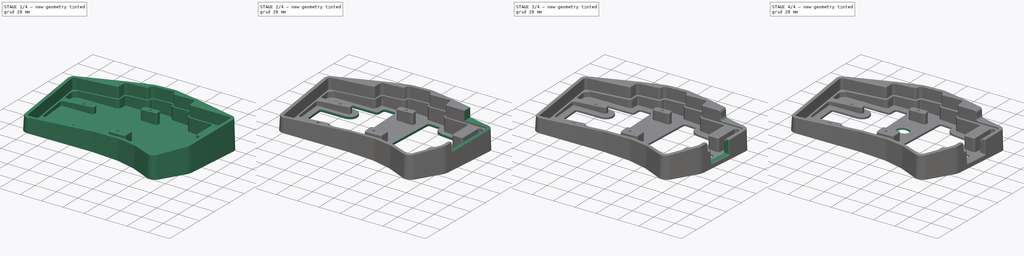
[diagram: build sequence overview — one tinted view per stage of 4, left to right]
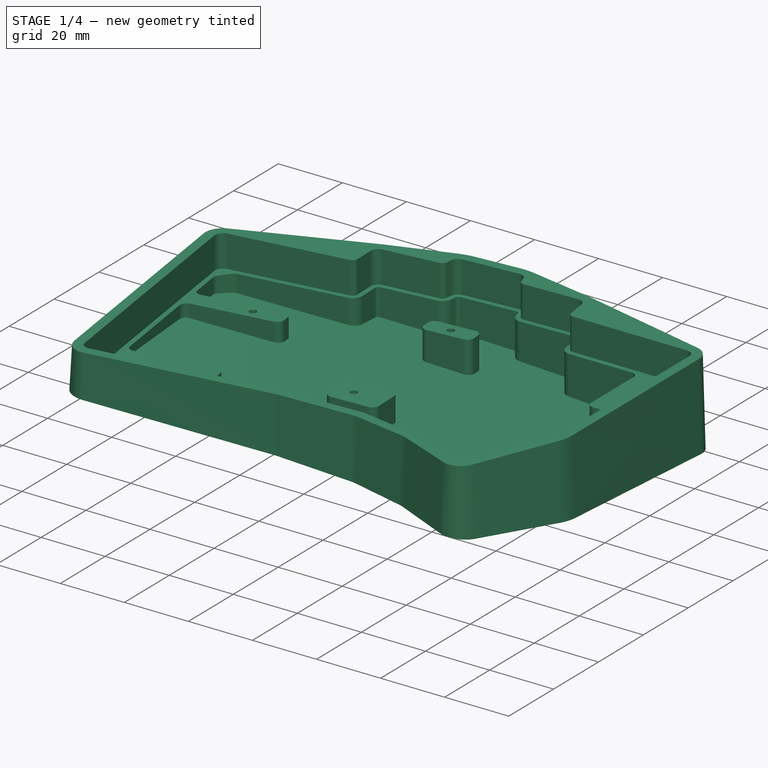
[diagram: stage 1 of 4 — iso view after this stage's code; geometry added in this stage tinted green]
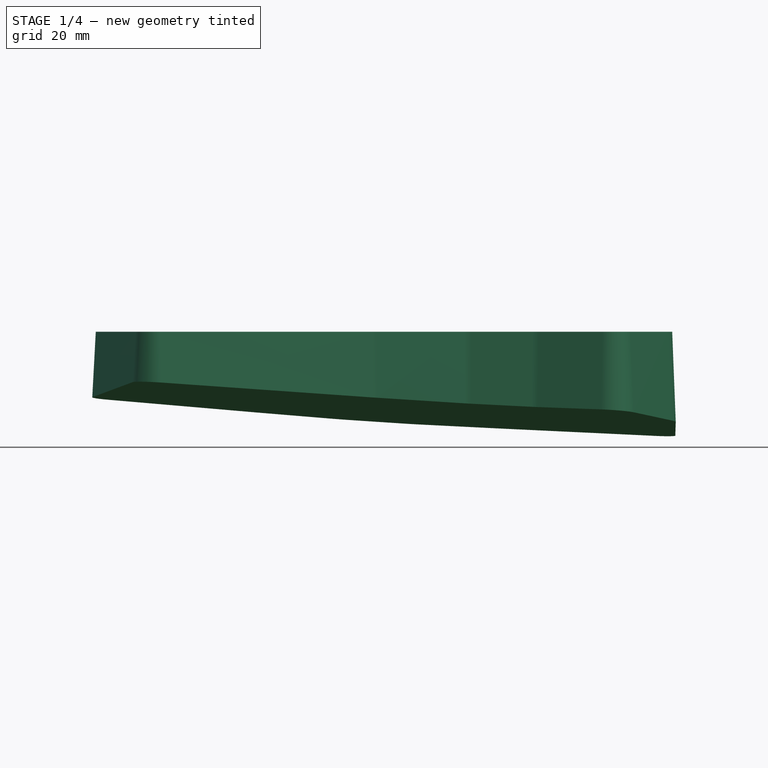
[diagram: stage 1 of 4 — front view after this stage's code; geometry added in this stage tinted green]
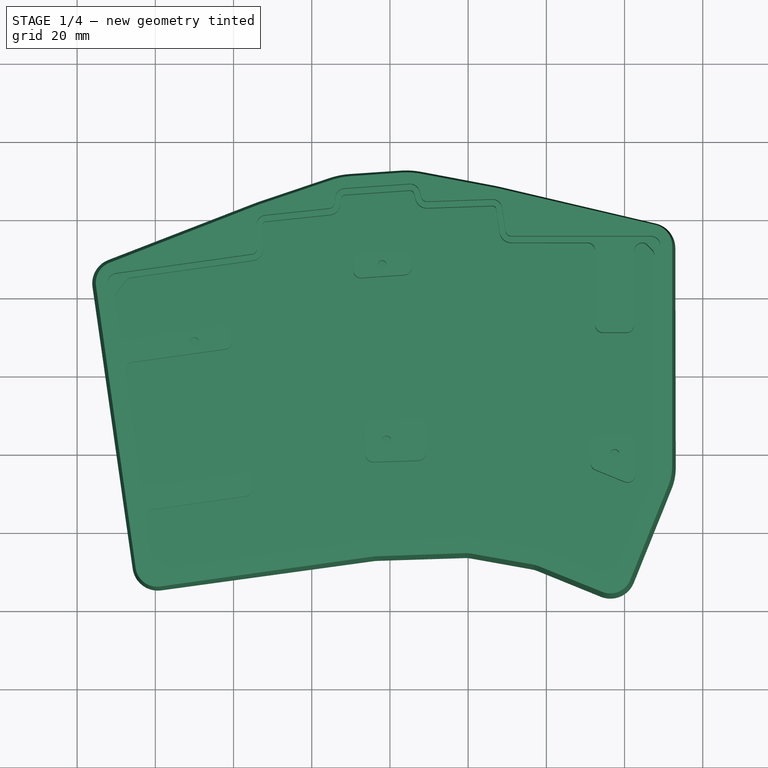
[diagram: stage 1 of 4 — top view after this stage's code; geometry added in this stage tinted green]
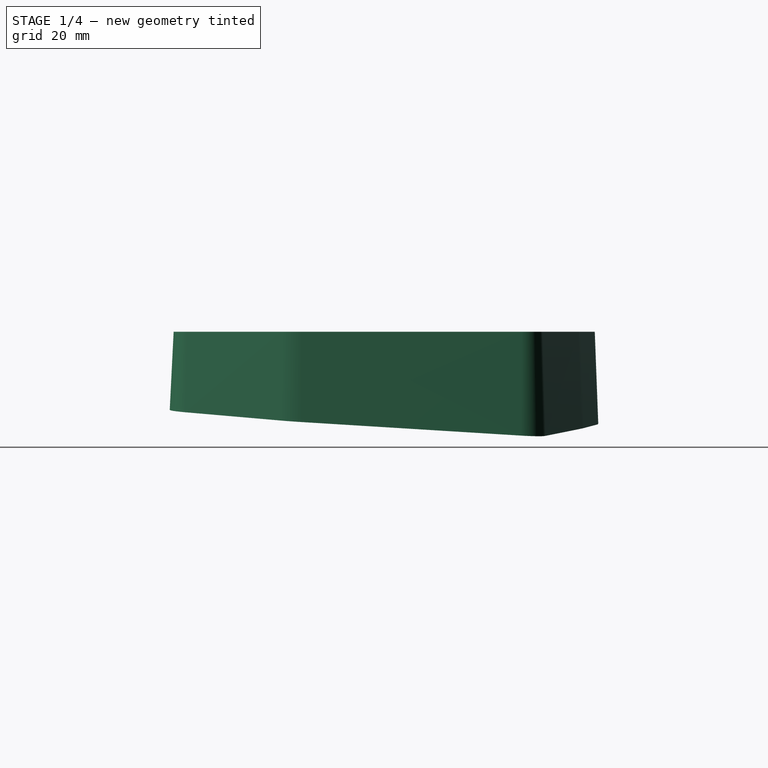
[diagram: stage 1 of 4 — right view after this stage's code; geometry added in this stage tinted green]
FCSTD DOCUMENT  (FreeCAD 0.20R)
Label: case
License: All rights reserved
LicenseURL: http://en.wikipedia.org/wiki/All_rights_reserved
objects: Sketcher::SketchObject×9, PartDesign::Pocket×6, PartDesign::Fillet×3, PartDesign::AdditiveLoft×1, PartDesign::Hole×1, PartDesign::Chamfer×1, PartDesign::Body×1
note: 34 computed .brp shape members not serialized (recipe doc carries the construction recipe); baked Part::Feature solids carry a one-line shape summary decoded from their .brp

FEATURE [Sketcher::SketchObject] Sketch
  AttachmentOffset = pos=(0,0,0) rot=(-0.707107,0.707107,0;0.087266rad)
  FullyConstrained = false
  MapMode = 5
  Placement = pos=(0,0,0) rot=(-0.707107,0.707107,0;0.087266rad)
  Support = -> [XY_Plane]
  sketch-geometry (24):
    g0: LineSegment StartX=28.6256 StartY=48.6172 StartZ=0 EndX=68.1608 EndY=39.4223 EndZ=0
    g1: ArcOfCircle CenterX=66.6883 CenterY=33.0913 CenterZ=0 NormalX=0 NormalY=0 NormalZ=1 AngleXU=0 Radius=6.5 StartAngle=0 EndAngle=1.34228
    g2: ArcOfCircle CenterX=58.6887 CenterY=-23.2259 CenterZ=0 NormalX=0 NormalY=0 NormalZ=1 AngleXU=0 Radius=14.5 StartAngle=5.89921 EndAngle=6.27415
    g3: LineSegment StartX=72.1329 StartY=-28.6577 StartZ=0 EndX=62.3826 EndY=-52.7905 EndZ=0
    g4: ArcOfCircle CenterX=56.3559 CenterY=-50.3555 CenterZ=0 NormalX=0 NormalY=0 NormalZ=1 AngleXU=0 Radius=6.5 StartAngle=4.32842 EndAngle=5.89921
    g5: ArcOfCircle CenterX=-59.5794 CenterY=-48.6384 CenterZ=0 NormalX=0 NormalY=0 NormalZ=1 AngleXU=0 Radius=6.5 StartAngle=3.28122 EndAngle=4.85202
    g6: LineSegment StartX=-66.0162 StartY=-49.543 StartZ=0 EndX=-76.1688 EndY=22.697 EndZ=0
    g7: ArcOfCircle CenterX=-69.7321 CenterY=23.6017 CenterZ=0 NormalX=0 NormalY=0 NormalZ=1 AngleXU=0 Radius=6.5 StartAngle=1.94285 EndAngle=3.28122
    g8: LineSegment StartX=-72.095 StartY=29.657 StartZ=0 EndX=-34.951 EndY=44.1515 EndZ=0
    g9: LineSegment StartX=-32.7629 StartY=44.9483 StartZ=0 EndX=-15.3566 EndY=50.8402 EndZ=0
    g10: ArcOfCircle CenterX=-16.4111 CenterY=-3.35926 CenterZ=0 NormalX=0 NormalY=0 NormalZ=1 AngleXU=0 Radius=51 StartAngle=1.89718 EndAngle=1.94285
    g11: ArcOfCircle CenterX=-8.62352 CenterY=30.9488 CenterZ=0 NormalX=0 NormalY=0 NormalZ=1 AngleXU=0 Radius=21 StartAngle=1.64061 EndAngle=1.89718
    g12: LineSegment StartX=-10.0884 StartY=51.8977 StartZ=0 EndX=2.83617 EndY=52.8015 EndZ=0
    g13: ArcOfCircle CenterX=4.30106 CenterY=31.8526 CenterZ=0 NormalX=0 NormalY=0 NormalZ=1 AngleXU=0 Radius=21 StartAngle=1.38586 EndAngle=1.64061
    g14: LineSegment StartX=26.4508 StartY=49.0733 StartZ=0 EndX=8.16264 EndY=52.4945 EndZ=0
    g15: ArcOfCircle CenterX=17.0727 CenterY=-1.05707 CenterZ=0 NormalX=0 NormalY=0 NormalZ=1 AngleXU=0 Radius=51 StartAngle=1.34228 EndAngle=1.38586
    g16: LineSegment StartX=73.1881 StartY=-23.3569 StartZ=0 EndX=73.1883 EndY=33.0913 EndZ=0
    g17: LineSegment StartX=-4.22173 StartY=-47.4222 StartZ=0 EndX=-58.6748 EndY=-55.0751 EndZ=0
    g18: ArcOfCircle CenterX=-3.10834 CenterY=-55.3444 CenterZ=0 NormalX=0 NormalY=0 NormalZ=1 AngleXU=0 Radius=8 StartAngle=1.6057 EndAngle=1.71042
    g19: LineSegment StartX=53.921 StartY=-56.3822 StartZ=0 EndX=37.8078 EndY=-49.8721 EndZ=0
    g20: ArcOfCircle CenterX=34.811 CenterY=-57.2895 CenterZ=0 NormalX=0 NormalY=0 NormalZ=1 AngleXU=0 Radius=8 StartAngle=1.18682 EndAngle=1.39626
    g21: LineSegment StartX=20.724 StartY=-46.6822 StartZ=0 EndX=36.2001 EndY=-49.4111 EndZ=0
    g22: LineSegment StartX=-3.38754 StartY=-47.3493 StartZ=0 EndX=19.0556 EndY=-46.5655 EndZ=0
    g23: ArcOfCircle CenterX=19.3348 CenterY=-54.5607 CenterZ=0 NormalX=0 NormalY=0 NormalZ=1 AngleXU=0 Radius=8 StartAngle=1.39626 EndAngle=1.6057
  constraints (24):
    c: Coincident(g6,g7)
    c: Coincident(g7,g8)
    c: Coincident(g5,g6)
    c: Coincident(g5,g17)
    c: Coincident(g8,g10)
    c: Coincident(g9,g10)
    c: Coincident(g9,g11)
    c: Coincident(g11,g12)
    c: Coincident(g17,g18)
    c: Coincident(g18,g22)
    c: Coincident(g12,g13)
    c: Coincident(g13,g14)
    c: Coincident(g22,g23)
    c: Coincident(g21,g23)
    c: Coincident(g14,g15)
    c: Coincident(g0,g15)
    c: Coincident(g20,g21)
    c: Coincident(g19,g20)
    c: Coincident(g4,g19)
    c: Coincident(g3,g4)
    c: Coincident(g0,g1)
    c: Coincident(g2,g3)
    c: Coincident(g2,g16)
    c: Coincident(g1,g16)
FEATURE [Sketcher::SketchObject] Sketch001
  AttachmentOffset = pos=(0,0,20) rot=(0,0,1;0rad)
  FullyConstrained = false
  MapMode = 5
  Placement = pos=(0,0,20) rot=(0,0,1;0rad)
  Support = -> [XY_Plane]
  sketch-geometry (24):
    g0: LineSegment StartX=-65.0259 StartY=-49.4038 StartZ=0 EndX=-75.1786 EndY=22.8362 EndZ=0
    g1: ArcOfCircle CenterX=-59.5794 CenterY=-48.6384 CenterZ=0 NormalX=0 NormalY=0 NormalZ=1 AngleXU=0 Radius=5.5 StartAngle=3.28122 EndAngle=4.85202
    g2: ArcOfCircle CenterX=56.3559 CenterY=-50.3555 CenterZ=0 NormalX=0 NormalY=0 NormalZ=1 AngleXU=0 Radius=5.5 StartAngle=4.32842 EndAngle=5.89921
    g3: LineSegment StartX=71.2057 StartY=-28.2831 StartZ=0 EndX=61.4554 EndY=-52.4158 EndZ=0
    g4: ArcOfCircle CenterX=58.6887 CenterY=-23.2259 CenterZ=0 NormalX=0 NormalY=0 NormalZ=1 AngleXU=0 Radius=13.5 StartAngle=5.89921 EndAngle=6.27415
    g5: ArcOfCircle CenterX=-69.7321 CenterY=23.6017 CenterZ=0 NormalX=0 NormalY=0 NormalZ=1 AngleXU=0 Radius=5.5 StartAngle=1.94285 EndAngle=3.28122
    g6: ArcOfCircle CenterX=66.6883 CenterY=33.0913 CenterZ=0 NormalX=0 NormalY=0 NormalZ=1 AngleXU=0 Radius=5.5 StartAngle=0 EndAngle=1.34228
    g7: LineSegment StartX=28.3991 StartY=47.6432 StartZ=0 EndX=67.9342 EndY=38.4483 EndZ=0
    g8: ArcOfCircle CenterX=17.0727 CenterY=-1.05707 CenterZ=0 NormalX=0 NormalY=0 NormalZ=1 AngleXU=0 Radius=50 StartAngle=1.34228 EndAngle=1.38586
    g9: LineSegment StartX=26.2669 StartY=48.0903 StartZ=0 EndX=7.97876 EndY=51.5116 EndZ=0
    g10: ArcOfCircle CenterX=4.30106 CenterY=31.8526 CenterZ=0 NormalX=0 NormalY=0 NormalZ=1 AngleXU=0 Radius=20 StartAngle=1.38586 EndAngle=1.64061
    g11: LineSegment StartX=-10.0186 StartY=50.9001 StartZ=0 EndX=2.90593 EndY=51.8039 EndZ=0
    g12: ArcOfCircle CenterX=-8.62352 CenterY=30.9488 CenterZ=0 NormalX=0 NormalY=0 NormalZ=1 AngleXU=0 Radius=20 StartAngle=1.64061 EndAngle=1.89718
    g13: LineSegment StartX=-71.7315 StartY=28.7254 StartZ=0 EndX=-34.5875 EndY=43.2199 EndZ=0
    g14: LineSegment StartX=-32.4422 StartY=44.0011 StartZ=0 EndX=-15.036 EndY=49.893 EndZ=0
    g15: ArcOfCircle CenterX=-16.4111 CenterY=-3.35926 CenterZ=0 NormalX=0 NormalY=0 NormalZ=1 AngleXU=0 Radius=50 StartAngle=1.89718 EndAngle=1.94285
    g16: LineSegment StartX=72.1882 StartY=-23.3478 StartZ=0 EndX=72.1883 EndY=33.0913 EndZ=0
    g17: LineSegment StartX=54.2956 StartY=-55.455 StartZ=0 EndX=38.085 EndY=-48.9055 EndZ=0
    g18: ArcOfCircle CenterX=35.0881 CenterY=-56.323 CenterZ=0 NormalX=0 NormalY=0 NormalZ=1 AngleXU=0 Radius=8 StartAngle=1.18682 EndAngle=1.39626
    g19: LineSegment StartX=20.82 StartY=-45.6837 StartZ=0 EndX=36.4773 EndY=-48.4445 EndZ=0
    g20: ArcOfCircle CenterX=19.4309 CenterY=-53.5622 CenterZ=0 NormalX=0 NormalY=0 NormalZ=1 AngleXU=0 Radius=8 StartAngle=1.39626 EndAngle=1.6057
    g21: LineSegment StartX=-4.3609 StartY=-46.432 StartZ=0 EndX=-58.814 EndY=-54.0849 EndZ=0
    g22: LineSegment StartX=-3.52671 StartY=-46.359 StartZ=0 EndX=19.1517 EndY=-45.5671 EndZ=0
    g23: ArcOfCircle CenterX=-3.24752 CenterY=-54.3541 CenterZ=0 NormalX=0 NormalY=0 NormalZ=1 AngleXU=0 Radius=8 StartAngle=1.6057 EndAngle=1.71042
  constraints (24):
    c: Coincident(g0,g5)
    c: Coincident(g5,g13)
    c: Coincident(g0,g1)
    c: Coincident(g1,g21)
    c: Coincident(g13,g15)
    c: Coincident(g14,g15)
    c: Coincident(g12,g14)
    c: Coincident(g11,g12)
    c: Coincident(g21,g23)
    c: Coincident(g22,g23)
    c: Coincident(g10,g11)
    c: Coincident(g9,g10)
    c: Coincident(g20,g22)
    c: Coincident(g19,g20)
    c: Coincident(g8,g9)
    c: Coincident(g7,g8)
    c: Coincident(g18,g19)
    c: Coincident(g17,g18)
    c: Coincident(g2,g17)
    c: Coincident(g2,g3)
    c: Coincident(g6,g7)
    c: Coincident(g3,g4)
    c: Coincident(g4,g16)
    c: Coincident(g6,g16)
FEATURE [PartDesign::AdditiveLoft] AdditiveLoft
  Closed = true
  Profile = -> Sketch001
  Ruled = true
  Sections = -> [Sketch]
FEATURE [Sketcher::SketchObject] Sketch002
  FullyConstrained = false
  MapMode = 5
  Placement = pos=(0,0,20) rot=(0,0,1;0rad)
  Support = -> [AdditiveLoft]
  sketch-geometry (32):
    g0: LineSegment StartX=-11.6753 StartY=47.777 StartZ=0 EndX=4.96767 EndY=48.9407 EndZ=0
    g1: ArcOfCircle CenterX=-11.5009 CenterY=45.283 CenterZ=0 NormalX=0 NormalY=0 NormalZ=1 AngleXU=0 Radius=2.5 StartAngle=1.64061 EndAngle=3.0267
    g2: LineSegment StartX=-14.166 StartY=43.9958 StartZ=0 EndX=-13.9844 EndY=45.5696 EndZ=0
    g3: ArcOfCircle CenterX=-15.6561 CenterY=44.1678 CenterZ=0 NormalX=0 NormalY=0 NormalZ=1 AngleXU=0 Radius=1.5 StartAngle=4.81711 EndAngle=6.16829
    g4: LineSegment StartX=-31.9027 StartY=40.9519 StartZ=0 EndX=-15.4993 EndY=42.676 EndZ=0
    g5: ArcOfCircle CenterX=-31.6414 CenterY=38.4656 CenterZ=0 NormalX=0 NormalY=0 NormalZ=1 AngleXU=0 Radius=2.5 StartAngle=1.67552 EndAngle=3.17029
    g6: LineSegment StartX=-33.9712 StartY=32.4992 StartZ=0 EndX=-34.1404 EndY=38.3939 EndZ=0
    g7: ArcOfCircle CenterX=-35.4706 CenterY=32.4561 CenterZ=0 NormalX=0 NormalY=0 NormalZ=1 AngleXU=0 Radius=1.5 StartAngle=4.85202 EndAngle=6.31188
    g8: LineSegment StartX=-70.08 StartY=26.0773 StartZ=0 EndX=-35.2618 EndY=30.9707 EndZ=0
    g9: ArcOfCircle CenterX=-69.7321 CenterY=23.6017 CenterZ=0 NormalX=0 NormalY=0 NormalZ=1 AngleXU=0 Radius=2.5 StartAngle=1.71042 EndAngle=3.28122
    g10: LineSegment StartX=-62.0551 StartY=-48.9863 StartZ=0 EndX=-72.2078 EndY=23.2537 EndZ=0
    g11: ArcOfCircle CenterX=-59.5794 CenterY=-48.6384 CenterZ=0 NormalX=0 NormalY=0 NormalZ=1 AngleXU=0 Radius=2.5 StartAngle=3.28122 EndAngle=4.85202
    g12: LineSegment StartX=-6.37833 StartY=-43.686 StartZ=0 EndX=-59.2315 EndY=-51.1141 EndZ=0
    g13: ArcOfCircle CenterX=-5.05618 CenterY=-53.0936 CenterZ=0 NormalX=0 NormalY=0 NormalZ=1 AngleXU=0 Radius=9.5 StartAngle=1.6057 EndAngle=1.71042
    g14: LineSegment StartX=-5.38773 StartY=-43.5994 StartZ=0 EndX=19.8935 EndY=-42.7165 EndZ=0
    g15: ArcOfCircle CenterX=20.225 CenterY=-52.2107 CenterZ=0 NormalX=0 NormalY=0 NormalZ=1 AngleXU=0 Radius=9.5 StartAngle=1.39626 EndAngle=1.6057
    g16: LineSegment StartX=21.8747 StartY=-42.8551 StartZ=0 EndX=37.2926 EndY=-45.5737 EndZ=0
    g17: ArcOfCircle CenterX=35.6429 CenterY=-54.9293 CenterZ=0 NormalX=0 NormalY=0 NormalZ=1 AngleXU=0 Radius=9.5 StartAngle=1.18682 EndAngle=1.39626
    g18: LineSegment StartX=55.4194 StartY=-52.6735 StartZ=0 EndX=39.2017 EndY=-46.1211 EndZ=0
    g19: ArcOfCircle CenterX=56.3559 CenterY=-50.3555 CenterZ=0 NormalX=0 NormalY=0 NormalZ=1 AngleXU=0 Radius=2.5 StartAngle=4.32842 EndAngle=5.89921
    g20: LineSegment StartX=68.4242 StartY=-27.1593 StartZ=0 EndX=58.6739 EndY=-51.292 EndZ=0
    g21: ArcOfCircle CenterX=58.6887 CenterY=-23.2259 CenterZ=0 NormalX=0 NormalY=0 NormalZ=1 AngleXU=0 Radius=10.5 StartAngle=5.89921 EndAngle=6.27415
    g22: ArcOfCircle CenterX=66.6883 CenterY=33.0913 CenterZ=0 NormalX=0 NormalY=0 NormalZ=1 AngleXU=0 Radius=2.5 StartAngle=0 EndAngle=1.5708
    g23: LineSegment StartX=31.0443 StartY=35.5913 StartZ=0 EndX=66.6883 EndY=35.5913 EndZ=0
    g24: LineSegment StartX=28.6823 StartY=42.868 StartZ=0 EndX=29.5601 EndY=36.8739 EndZ=0
    g25: ArcOfCircle CenterX=31.0443 CenterY=37.0913 CenterZ=0 NormalX=0 NormalY=0 NormalZ=1 AngleXU=0 Radius=1.5 StartAngle=3.287 EndAngle=4.71239
    g26: ArcOfCircle CenterX=26.2087 CenterY=42.5058 CenterZ=0 NormalX=0 NormalY=0 NormalZ=1 AngleXU=0 Radius=2.5 StartAngle=0.145412 EndAngle=1.6057
    g27: LineSegment StartX=9.52082 StartY=44.4246 StartZ=0 EndX=26.1215 EndY=45.0043 EndZ=0
    g28: ArcOfCircle CenterX=5.14206 CenterY=46.4468 CenterZ=0 NormalX=0 NormalY=0 NormalZ=1 AngleXU=0 Radius=2.5 StartAngle=0.28778 EndAngle=1.64061
    g29: LineSegment StartX=7.53925 StartY=47.1564 StartZ=0 EndX=8.03016 EndY=45.4979 EndZ=0
    g30: ArcOfCircle CenterX=9.46847 CenterY=45.9236 CenterZ=0 NormalX=0 NormalY=0 NormalZ=1 AngleXU=0 Radius=1.5 StartAngle=3.42937 EndAngle=4.7473
    g31: LineSegment StartX=69.1883 StartY=-23.3207 StartZ=0 EndX=69.1883 EndY=33.0913 EndZ=0
  constraints (32):
    c: Coincident(g9,g10)
    c: Coincident(g8,g9)
    c: Coincident(g10,g11)
    c: Coincident(g11,g12)
    c: Coincident(g7,g8)
    c: Coincident(g5,g6)
    c: Coincident(g6,g7)
    c: Coincident(g4,g5)
    c: Coincident(g3,g4)
    c: Coincident(g2,g3)
    c: Coincident(g1,g2)
    c: Coincident(g0,g1)
    c: Coincident(g12,g13)
    c: Coincident(g13,g14)
    c: Coincident(g0,g28)
    c: Coincident(g28,g29)
    c: Coincident(g29,g30)
    c: Coincident(g27,g30)
    c: Coincident(g14,g15)
    c: Coincident(g15,g16)
    c: Coincident(g26,g27)
    c: Coincident(g24,g26)
    c: Coincident(g24,g25)
    c: Coincident(g23,g25)
    c: Coincident(g16,g17)
    c: Coincident(g17,g18)
    c: Coincident(g18,g19)
    c: Coincident(g19,g20)
    c: Coincident(g22,g23)
    c: Coincident(g20,g21)
    c: Coincident(g21,g31)
    c: Coincident(g22,g31)
FEATURE [PartDesign::Pocket] Pocket
  BaseFeature = -> AdditiveLoft
  Direction = (0,0,-1)
  Length = 10
  Length2 = 5
  Profile = -> Sketch002
  ReferenceAxis = -> Sketch002 [N_Axis]
  Type = 0
FEATURE [Sketcher::SketchObject] Sketch003
  FullyConstrained = false
  MapMode = 5
  Placement = pos=(0,0,10) rot=(0,0,1;0rad)
  Support = -> [Pocket]
  sketch-geometry (91):
    g0: Circle CenterX=-49.9951 CenterY=8.72879 CenterZ=0 NormalX=0 NormalY=0 NormalZ=-1 AngleXU=0 Radius=1.1
    g1: Circle CenterX=-1.98806 CenterY=28.4306 CenterZ=0 NormalX=0 NormalY=0 NormalZ=-1 AngleXU=0 Radius=1.1
    g2: Circle CenterX=-0.866417 CenterY=-16.4655 CenterZ=0 NormalX=0 NormalY=0 NormalZ=-1 AngleXU=0 Radius=1.1
    g3: Circle CenterX=57.4896 CenterY=-19.8837 CenterZ=0 NormalX=0 NormalY=0 NormalZ=-1 AngleXU=0 Radius=1.1
    g4: ArcOfCircle CenterX=60.4896 CenterY=13.1163 CenterZ=0 NormalX=0 NormalY=0 NormalZ=1 AngleXU=0 Radius=2 StartAngle=4.71239 EndAngle=6.28319
    g5: LineSegment StartX=60.4896 StartY=11.1163 StartZ=0 EndX=54.4896 EndY=11.1163 EndZ=0
    g6: ArcOfCircle CenterX=54.4896 CenterY=13.1163 CenterZ=0 NormalX=0 NormalY=0 NormalZ=1 AngleXU=0 Radius=2 StartAngle=3.14159 EndAngle=4.71239
    g7: ArcOfCircle CenterX=-4.25112 CenterY=-20.0704 CenterZ=0 NormalX=0 NormalY=0 NormalZ=1 AngleXU=0 Radius=2 StartAngle=3.24631 EndAngle=4.7473
    g8: LineSegment StartX=-6.94354 StartY=-13.5873 StartZ=0 EndX=-6.24017 EndY=-20.2794 EndZ=0
    g9: ArcOfCircle CenterX=-4.9545 CenterY=-13.3782 CenterZ=0 NormalX=0 NormalY=0 NormalZ=1 AngleXU=0 Radius=2 StartAngle=1.64061 EndAngle=3.24631
    g10: LineSegment StartX=7.25222 StartY=-21.6699 StartZ=0 EndX=-4.18132 EndY=-22.0691 EndZ=0
    g11: ArcOfCircle CenterX=7.18242 CenterY=-19.6711 CenterZ=0 NormalX=0 NormalY=0 NormalZ=1 AngleXU=0 Radius=2 StartAngle=4.7473 EndAngle=6.31809
    g12: LineSegment StartX=8.93242 StartY=-12.4771 StartZ=0 EndX=9.1812 EndY=-19.6013 EndZ=0
    g13: LineSegment StartX=-5.09401 StartY=-11.3831 StartZ=0 EndX=6.79412 EndY=-10.5518 EndZ=0
    g14: ArcOfCircle CenterX=6.93364 CenterY=-12.5469 CenterZ=0 NormalX=0 NormalY=0 NormalZ=1 AngleXU=0 Radius=2 StartAngle=0.0349066 EndAngle=1.64061
    g15: ArcOfCircle CenterX=3.5683 CenterY=27.8167 CenterZ=0 NormalX=0 NormalY=0 NormalZ=1 AngleXU=0 Radius=2 StartAngle=4.7822 EndAngle=6.353
    g16: LineSegment StartX=5.42391 StartY=29.9513 StartZ=0 EndX=5.56343 EndY=27.9562 EndZ=0
    g17: ArcOfCircle CenterX=3.42879 CenterY=29.8118 CenterZ=0 NormalX=0 NormalY=0 NormalZ=1 AngleXU=0 Radius=2 StartAngle=0.0698132 EndAngle=1.64061
    g18: LineSegment StartX=-7.68393 StartY=31.0396 StartZ=0 EndX=3.28927 EndY=31.8069 EndZ=0
    g19: ArcOfCircle CenterX=-7.54442 CenterY=29.0445 CenterZ=0 NormalX=0 NormalY=0 NormalZ=1 AngleXU=0 Radius=2 StartAngle=1.64061 EndAngle=3.21141
    g20: LineSegment StartX=-9.53955 StartY=28.905 StartZ=0 EndX=-9.40003 EndY=26.9098 EndZ=0
    g21: LineSegment StartX=3.70781 StartY=25.8215 StartZ=0 EndX=-7.26539 EndY=25.0542 EndZ=0
    g22: ArcOfCircle CenterX=-7.40491 CenterY=27.0494 CenterZ=0 NormalX=0 NormalY=0 NormalZ=1 AngleXU=0 Radius=2 StartAngle=3.21141 EndAngle=4.7822
    g23: ArcOfCircle CenterX=-42.4289 CenterY=8.78232 CenterZ=0 NormalX=0 NormalY=0 NormalZ=1 AngleXU=0 Radius=2 StartAngle=4.85202 EndAngle=6.42281
    g24: LineSegment StartX=-40.4484 StartY=9.06066 StartZ=0 EndX=-40.7267 EndY=11.0412 EndZ=0
    g25: ArcOfCircle CenterX=-42.7073 CenterY=10.7629 CenterZ=0 NormalX=0 NormalY=0 NormalZ=1 AngleXU=0 Radius=2 StartAngle=0.139626 EndAngle=1.71042
    g26: LineSegment StartX=-5.44008 StartY=-42.1003 StartZ=0 EndX=19.8411 EndY=-41.2174 EndZ=0
    g27: ArcOfCircle CenterX=-5.05618 CenterY=-53.0936 CenterZ=0 NormalX=0 NormalY=0 NormalZ=1 AngleXU=0 Radius=11 StartAngle=1.6057 EndAngle=1.71042
    g28: ArcOfCircle CenterX=20.225 CenterY=-52.2107 CenterZ=0 NormalX=0 NormalY=0 NormalZ=1 AngleXU=0 Radius=11 StartAngle=1.39626 EndAngle=1.6057
    g29: LineSegment StartX=22.1351 StartY=-41.3779 StartZ=0 EndX=37.5531 EndY=-44.0964 EndZ=0
    g30: ArcOfCircle CenterX=35.6429 CenterY=-54.9293 CenterZ=0 NormalX=0 NormalY=0 NormalZ=1 AngleXU=0 Radius=11 StartAngle=1.18682 EndAngle=1.39626
    g31: ArcOfCircle CenterX=31.0443 CenterY=37.0913 CenterZ=0 NormalX=0 NormalY=0 NormalZ=1 AngleXU=0 Radius=3 StartAngle=3.287 EndAngle=4.71239
    g32: LineSegment StartX=27.1982 StartY=42.6507 StartZ=0 EndX=28.076 EndY=36.6566 EndZ=0
    g33: ArcOfCircle CenterX=26.2087 CenterY=42.5058 CenterZ=0 NormalX=0 NormalY=0 NormalZ=1 AngleXU=0 Radius=1 StartAngle=0.145412 EndAngle=1.6057
    g34: LineSegment StartX=9.57317 StartY=42.9255 StartZ=0 EndX=26.1738 EndY=43.5052 EndZ=0
    g35: LineSegment StartX=-11.5706 StartY=46.2806 StartZ=0 EndX=5.0723 EndY=47.4444 EndZ=0
    g36: ArcOfCircle CenterX=9.46847 CenterY=45.9236 CenterZ=0 NormalX=0 NormalY=0 NormalZ=1 AngleXU=0 Radius=3 StartAngle=3.42937 EndAngle=4.7473
    g37: ArcOfCircle CenterX=5.14206 CenterY=46.4468 CenterZ=0 NormalX=0 NormalY=0 NormalZ=1 AngleXU=0 Radius=1 StartAngle=0.28778 EndAngle=1.64061
    g38: LineSegment StartX=6.10094 StartY=46.7307 StartZ=0 EndX=6.59184 EndY=45.0722 EndZ=0
    g39: LineSegment StartX=-12.6759 StartY=43.8239 StartZ=0 EndX=-12.4943 EndY=45.3977 EndZ=0
    g40: ArcOfCircle CenterX=-11.5009 CenterY=45.283 CenterZ=0 NormalX=0 NormalY=0 NormalZ=1 AngleXU=0 Radius=1 StartAngle=1.64061 EndAngle=3.0267
    g41: ArcOfCircle CenterX=-15.6561 CenterY=44.1678 CenterZ=0 NormalX=0 NormalY=0 NormalZ=1 AngleXU=0 Radius=3 StartAngle=4.81711 EndAngle=6.16829
    g42: LineSegment StartX=-31.7459 StartY=39.4601 StartZ=0 EndX=-15.3425 EndY=41.1842 EndZ=0
    g43: LineSegment StartX=-32.4718 StartY=32.5422 StartZ=0 EndX=-32.641 EndY=38.4369 EndZ=0
    g44: ArcOfCircle CenterX=-31.6414 CenterY=38.4656 CenterZ=0 NormalX=0 NormalY=0 NormalZ=1 AngleXU=0 Radius=1 StartAngle=1.67552 EndAngle=3.17029
    g45: ArcOfCircle CenterX=-35.4706 CenterY=32.4561 CenterZ=0 NormalX=0 NormalY=0 NormalZ=1 AngleXU=0 Radius=3 StartAngle=4.85202 EndAngle=6.31188
    g46: LineSegment StartX=-66.7273 StartY=9.40671 StartZ=0 EndX=-42.9856 EndY=12.7434 EndZ=0
    g47: ArcOfCircle CenterX=-67.0056 CenterY=11.3872 CenterZ=0 NormalX=0 NormalY=0 NormalZ=1 AngleXU=0 Radius=2 StartAngle=3.28122 EndAngle=4.85202
    g48: LineSegment StartX=-42.1506 StartY=6.80178 StartZ=0 EndX=-65.8923 EndY=3.46511 EndZ=0
    g49: ArcOfCircle CenterX=-65.6139 CenterY=1.48457 CenterZ=0 NormalX=0 NormalY=0 NormalZ=1 AngleXU=0 Radius=2 StartAngle=1.71042 EndAngle=3.28122
    g50: ArcOfCircle CenterX=-37.1403 CenterY=-28.8479 CenterZ=0 NormalX=0 NormalY=0 NormalZ=1 AngleXU=0 Radius=2 StartAngle=4.85202 EndAngle=6.42281
    g51: LineSegment StartX=-35.1598 StartY=-28.5695 StartZ=0 EndX=-35.4382 EndY=-26.589 EndZ=0
    g52: ArcOfCircle CenterX=-37.4187 CenterY=-26.8673 CenterZ=0 NormalX=0 NormalY=0 NormalZ=1 AngleXU=0 Radius=2 StartAngle=0.139626 EndAngle=1.71042
    g53: LineSegment StartX=-61.4387 StartY=-28.2235 StartZ=0 EndX=-37.697 EndY=-24.8868 EndZ=0
    g54: ArcOfCircle CenterX=-61.7171 CenterY=-26.2429 CenterZ=0 NormalX=0 NormalY=0 NormalZ=1 AngleXU=0 Radius=2 StartAngle=3.28122 EndAngle=4.85202
    g55: LineSegment StartX=-36.862 StartY=-30.8284 StartZ=0 EndX=-60.6037 EndY=-34.1651 EndZ=0
    g56: ArcOfCircle CenterX=-60.3253 CenterY=-36.1456 CenterZ=0 NormalX=0 NormalY=0 NormalZ=1 AngleXU=0 Radius=2 StartAngle=1.71042 EndAngle=3.28122
    g57: LineSegment StartX=-67.5944 StartY=1.20622 StartZ=0 EndX=-63.6976 EndY=-26.5213 EndZ=0
    g58: LineSegment StartX=67.0334 StartY=-26.5974 StartZ=0 EndX=58.6531 EndY=-47.3394 EndZ=0
    g59: ArcOfCircle CenterX=56.7987 CenterY=-46.5902 CenterZ=0 NormalX=0 NormalY=0 NormalZ=1 AngleXU=0 Radius=2 StartAngle=5.11386 EndAngle=5.89921
    g60: LineSegment StartX=54.1216 StartY=-49.8994 StartZ=0 EndX=57.5802 EndY=-48.4312 EndZ=0
    g61: LineSegment StartX=52.5908 StartY=-49.9128 StartZ=0 EndX=39.7636 EndY=-44.7303 EndZ=0
    g62: ArcOfCircle CenterX=53.34 CenterY=-48.0585 CenterZ=0 NormalX=0 NormalY=0 NormalZ=1 AngleXU=0 Radius=2 StartAngle=4.32842 EndAngle=5.11386
    g63: LineSegment StartX=67.6883 StartY=-23.3162 StartZ=0 EndX=67.6883 EndY=30.8486 EndZ=0
    g64: ArcOfCircle CenterX=65.6883 CenterY=30.8486 CenterZ=0 NormalX=0 NormalY=0 NormalZ=1 AngleXU=0 Radius=2 StartAngle=0 EndAngle=0.785398
    g65: LineSegment StartX=-68.9862 StartY=11.1089 StartZ=0 EndX=-70.2134 EndY=19.8412 EndZ=0
    g66: ArcOfCircle CenterX=-68.2329 CenterY=20.1196 CenterZ=0 NormalX=0 NormalY=0 NormalZ=1 AngleXU=0 Radius=2 StartAngle=2.49582 EndAngle=3.28122
    g67: LineSegment StartX=-69.8302 StartY=21.3232 StartZ=0 EndX=-67.5689 EndY=24.324 EndZ=0
    g68: LineSegment StartX=-66.25 StartY=25.1009 StartZ=0 EndX=-35.053 EndY=29.4853 EndZ=0
    g69: ArcOfCircle CenterX=-65.9716 CenterY=23.1203 CenterZ=0 NormalX=0 NormalY=0 NormalZ=1 AngleXU=0 Radius=2 StartAngle=1.71042 EndAngle=2.49582
    g70: LineSegment StartX=-6.58709 StartY=-42.2006 StartZ=0 EndX=-55.819 EndY=-49.1197 EndZ=0
    g71: ArcOfCircle CenterX=-56.0973 CenterY=-47.1392 CenterZ=0 NormalX=0 NormalY=0 NormalZ=1 AngleXU=0 Radius=2 StartAngle=4.06662 EndAngle=4.85202
    g72: LineSegment StartX=-57.3009 StartY=-48.7365 StartZ=0 EndX=-60.3017 EndY=-46.4752 EndZ=0
    g73: LineSegment StartX=-61.0786 StartY=-45.1563 StartZ=0 EndX=-62.3059 EndY=-36.424 EndZ=0
    g74: ArcOfCircle CenterX=-59.0981 CenterY=-44.8779 CenterZ=0 NormalX=0 NormalY=0 NormalZ=1 AngleXU=0 Radius=2 StartAngle=3.28122 EndAngle=4.06662
    g75: ArcOfCircle CenterX=53.2909 CenterY=-22.1942 CenterZ=0 NormalX=0 NormalY=0 NormalZ=1 AngleXU=0 Radius=2 StartAngle=3.14159 EndAngle=4.32842
    g76: LineSegment StartX=60.0306 StartY=-27.0743 StartZ=0 EndX=52.5416 EndY=-24.0486 EndZ=0
    g77: ArcOfCircle CenterX=60.7798 CenterY=-25.2199 CenterZ=0 NormalX=0 NormalY=0 NormalZ=1 AngleXU=0 Radius=2 StartAngle=4.32842 EndAngle=6.28319
    g78: LineSegment StartX=62.7798 StartY=-25.2199 StartZ=0 EndX=62.7798 EndY=-16.8837 EndZ=0
    g79: ArcOfCircle CenterX=60.7798 CenterY=-16.8837 CenterZ=0 NormalX=0 NormalY=0 NormalZ=1 AngleXU=0 Radius=2 StartAngle=0 EndAngle=1.5708
    g80: LineSegment StartX=53.2909 StartY=-14.8837 StartZ=0 EndX=60.7798 EndY=-14.8837 EndZ=0
    g81: LineSegment StartX=51.2909 StartY=-22.1942 StartZ=0 EndX=51.2909 EndY=-16.8837 EndZ=0
    g82: ArcOfCircle CenterX=53.2909 CenterY=-16.8837 CenterZ=0 NormalX=0 NormalY=0 NormalZ=1 AngleXU=0 Radius=2 StartAngle=1.5708 EndAngle=3.14159
    g83: LineSegment StartX=31.0443 StartY=34.0913 StartZ=0 EndX=50.4896 EndY=34.0913 EndZ=0
    g84: LineSegment StartX=52.4896 StartY=13.1163 StartZ=0 EndX=52.4896 EndY=32.0913 EndZ=0
    g85: ArcOfCircle CenterX=50.4896 CenterY=32.0913 CenterZ=0 NormalX=0 NormalY=0 NormalZ=1 AngleXU=0 Radius=2 StartAngle=0 EndAngle=1.5708
    g86: LineSegment StartX=62.4896 StartY=13.1163 StartZ=0 EndX=62.4896 EndY=32.0913 EndZ=0
    g87: ArcOfCircle CenterX=58.7125 CenterY=-23.2305 CenterZ=0 NormalX=0 NormalY=0 NormalZ=1 AngleXU=0 Radius=8.97622 StartAngle=5.8987 EndAngle=6.27364
    g88: LineSegment StartX=65.707 StartY=33.6584 StartZ=0 EndX=67.1025 EndY=32.2628 EndZ=0
    g89: ArcOfCircle CenterX=64.4896 CenterY=32.0913 CenterZ=0 NormalX=0 NormalY=0 NormalZ=1 AngleXU=0 Radius=2 StartAngle=1.03525 EndAngle=3.14159
    g90: ArcOfCircle CenterX=64.9999 CenterY=32.9513 CenterZ=0 NormalX=0 NormalY=0 NormalZ=1 AngleXU=0 Radius=1 StartAngle=0.785398 EndAngle=1.03525
  constraints (87):
    c: Coincident(g65,g66)
    c: Coincident(g66,g67)
    c: Coincident(g47,g65)
    c: Coincident(g49,g57)
    c: Coincident(g67,g69)
    c: Coincident(g46,g47)
    c: Coincident(g68,g69)
    c: Coincident(g48,g49)
    c: Coincident(g54,g57)
    c: Coincident(g56,g73)
    c: Coincident(g53,g54)
    c: Coincident(g73,g74)
    c: Coincident(g55,g56)
    c: Coincident(g72,g74)
    c: Coincident(g71,g72)
    c: Coincident(g70,g71)
    c: Coincident(g25,g46)
    c: Coincident(g23,g48)
    c: Coincident(g24,g25)
    c: Coincident(g23,g24)
    c: Coincident(g52,g53)
    c: Coincident(g50,g55)
    c: Coincident(g51,g52)
    c: Coincident(g50,g51)
    c: Coincident(g45,g68)
    c: Coincident(g43,g44)
    c: Coincident(g43,g45)
    c: Coincident(g42,g44)
    c: Coincident(g41,g42)
    c: Coincident(g39,g41)
    c: Coincident(g39,g40)
    c: Coincident(g35,g40)
    c: Coincident(g19,g20)
    c: Coincident(g20,g22)
    c: Coincident(g18,g19)
    c: Coincident(g21,g22)
    c: Coincident(g8,g9)
    c: Coincident(g27,g70)
    c: Coincident(g7,g8)
    c: Coincident(g26,g27)
    c: Coincident(g9,g13)
    c: Coincident(g7,g10)
    c: Coincident(g17,g18)
    c: Coincident(g15,g21)
    c: Coincident(g35,g37)
    c: Coincident(g16,g17)
    c: Coincident(g15,g16)
    c: Coincident(g37,g38)
    c: Coincident(g36,g38)
    c: Coincident(g13,g14)
    c: Coincident(g10,g11)
    c: Coincident(g12,g14)
    c: Coincident(g11,g12)
    c: Coincident(g34,g36)
    c: Coincident(g26,g28)
    c: Coincident(g28,g29)
    c: Coincident(g33,g34)
    c: Coincident(g32,g33)
    c: Coincident(g31,g32)
    c: Coincident(g31,g83)
    c: Coincident(g29,g30)
    c: Coincident(g30,g61)
    c: Coincident(g83,g85)
    c: Coincident(g75,g81)
    c: Coincident(g81,g82)
    c: Coincident(g6,g84)
    c: Coincident(g84,g85)
    c: Coincident(g75,g76)
    c: Coincident(g61,g62)
    c: Coincident(g80,g82)
    c: Coincident(g60,g62)
    c: Coincident(g5,g6)
    c: Coincident(g59,g60)
    c: Coincident(g58,g59)
    c: Coincident(g76,g77)
    c: Coincident(g4,g5)
    c: Coincident(g79,g80)
    c: Coincident(g4,g86)
    c: Coincident(g86,g89)
    c: Coincident(g77,g78)
    c: Coincident(g78,g79)
    c: Coincident(g89,g90)
    c: Coincident(g88,g90)
    c: Coincident(g58,g87)
    c: Coincident(g64,g88)
    c: Coincident(g63,g87)
    c: Coincident(g63,g64)
FEATURE [Sketcher::SketchObject] Sketch004
  FullyConstrained = false
  MapMode = 5
  Placement = pos=(0,0,10) rot=(0,0,1;0rad)
  Support = -> [Pocket]
  sketch-geometry (5):
    g0: Circle CenterX=-44.7065 CenterY=-28.9014 CenterZ=0 NormalX=0 NormalY=0 NormalZ=-1 AngleXU=0 Radius=1.1
    g1: Circle CenterX=-49.9951 CenterY=8.72879 CenterZ=0 NormalX=0 NormalY=0 NormalZ=-1 AngleXU=0 Radius=1.1
    g2: Circle CenterX=-1.98806 CenterY=28.4306 CenterZ=0 NormalX=0 NormalY=0 NormalZ=-1 AngleXU=0 Radius=1.1
    g3: Circle CenterX=-0.866417 CenterY=-16.4655 CenterZ=0 NormalX=0 NormalY=0 NormalZ=-1 AngleXU=0 Radius=1.1
    g4: Circle CenterX=57.4896 CenterY=-19.8837 CenterZ=0 NormalX=0 NormalY=0 NormalZ=-1 AngleXU=0 Radius=1.1
FEATURE [PartDesign::Pocket] Pocket001
  BaseFeature = -> Pocket
  Direction = (0,0,-1)
  Length = 0
  Length2 = 5
  Offset = -2
  Profile = -> Sketch003
  ReferenceAxis = -> Sketch003 [N_Axis]
  Type = 3
  UpToFace = -> Pocket [Face58]
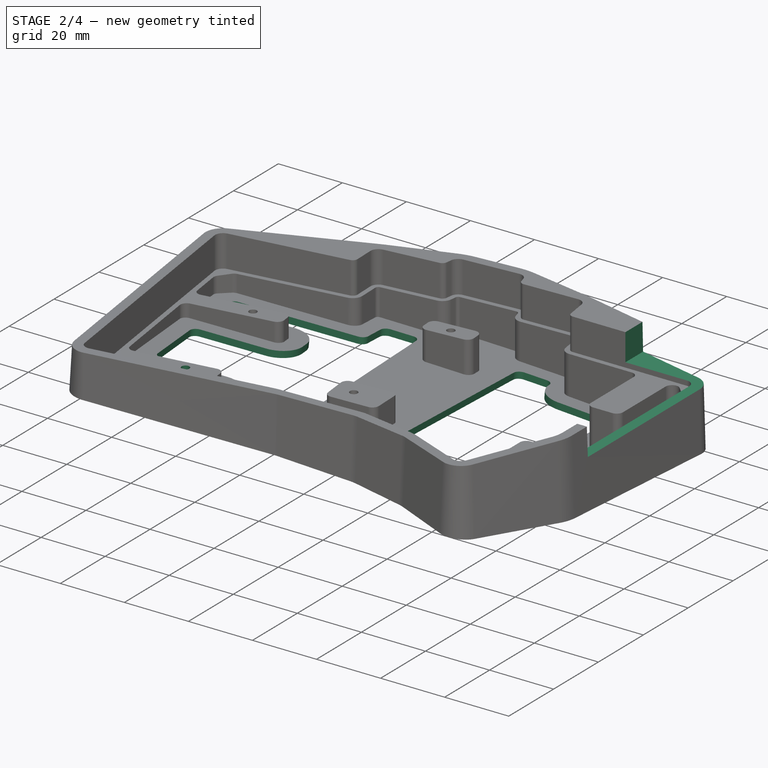
[diagram: stage 2 of 4 — iso view after this stage's code; geometry added in this stage tinted green]
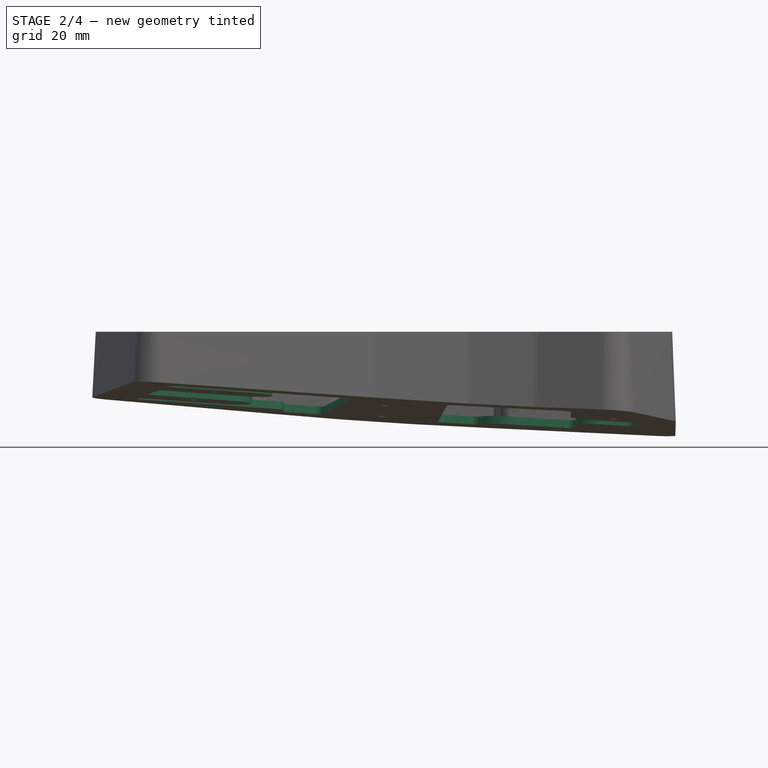
[diagram: stage 2 of 4 — front view after this stage's code; geometry added in this stage tinted green]
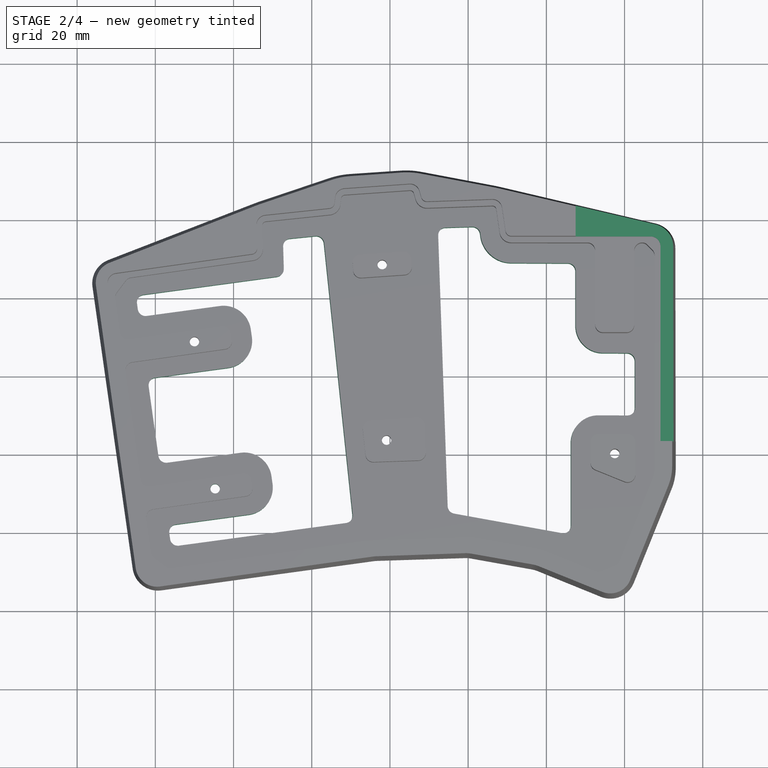
[diagram: stage 2 of 4 — top view after this stage's code; geometry added in this stage tinted green]
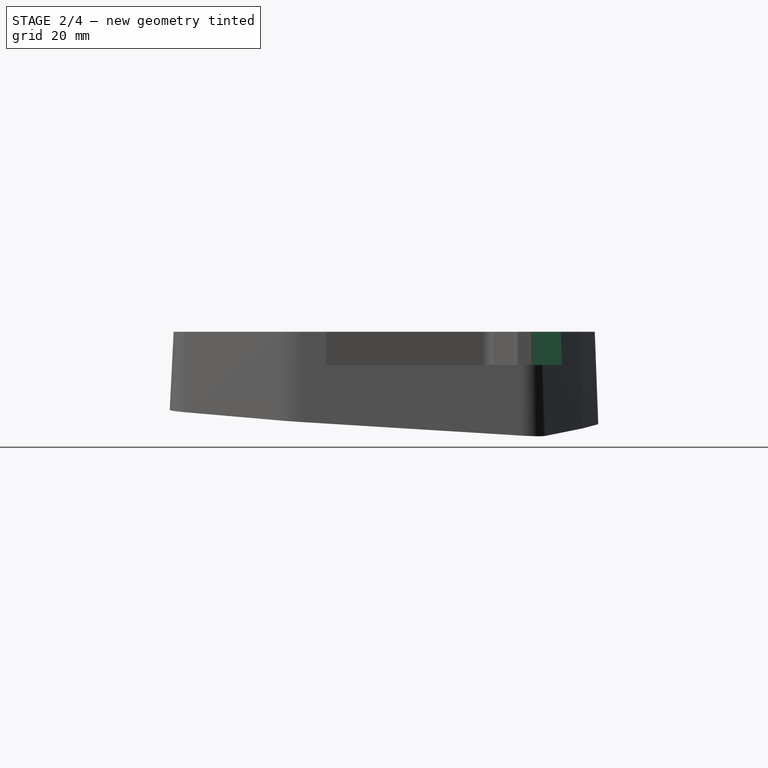
[diagram: stage 2 of 4 — right view after this stage's code; geometry added in this stage tinted green]
FEATURE [Sketcher::SketchObject] Sketch005
  FullyConstrained = false
  MapMode = 5
  Placement = pos=(0.122788,0.122788,1.98481) rot=(-0.707612,0.706264,-0.021825;0.087287rad)
  Support = -> [Pocket001]
  sketch-geometry (47):
    g0: ArcOfCircle CenterX=-37.4187 CenterY=-26.8673 CenterZ=0 NormalX=0 NormalY=0 NormalZ=1 AngleXU=0 Radius=7 StartAngle=0.139626 EndAngle=1.71042
    g1: LineSegment StartX=-30.2085 StartY=-27.8737 StartZ=0 EndX=-30.4868 EndY=-25.8931 EndZ=0
    g2: ArcOfCircle CenterX=-37.1403 CenterY=-28.8479 CenterZ=0 NormalX=0 NormalY=0 NormalZ=1 AngleXU=0 Radius=7 StartAngle=4.85202 EndAngle=6.42281
    g3: ArcOfCircle CenterX=54.4896 CenterY=13.1163 CenterZ=0 NormalX=0 NormalY=0 NormalZ=1 AngleXU=0 Radius=7 StartAngle=3.14159 EndAngle=4.71239
    g4: ArcOfCircle CenterX=53.2909 CenterY=-16.8837 CenterZ=0 NormalX=0 NormalY=0 NormalZ=1 AngleXU=0 Radius=7 StartAngle=1.5708 EndAngle=3.14159
    g5: ArcOfCircle CenterX=-42.7073 CenterY=10.7629 CenterZ=0 NormalX=0 NormalY=0 NormalZ=1 AngleXU=0 Radius=7 StartAngle=0.139626 EndAngle=1.71042
    g6: LineSegment StartX=-35.497 StartY=9.75653 StartZ=0 EndX=-35.7754 EndY=11.7371 EndZ=0
    g7: ArcOfCircle CenterX=-42.4289 CenterY=8.78232 CenterZ=0 NormalX=0 NormalY=0 NormalZ=1 AngleXU=0 Radius=7 StartAngle=4.85202 EndAngle=6.42281
    g8: ArcOfCircle CenterX=-62.9554 CenterY=18.4951 CenterZ=0 NormalX=0 NormalY=0 NormalZ=1 AngleXU=0 Radius=2 StartAngle=1.71042 EndAngle=3.28122
    g9: LineSegment StartX=-64.7307 StartY=16.7561 StartZ=0 EndX=-64.936 EndY=18.2168 EndZ=0
    g10: LineSegment StartX=-62.4718 StartY=15.0539 StartZ=0 EndX=-43.6815 EndY=17.6947 EndZ=0
    g11: ArcOfCircle CenterX=-62.7502 CenterY=17.0345 CenterZ=0 NormalX=0 NormalY=0 NormalZ=1 AngleXU=0 Radius=2 StartAngle=3.28122 EndAngle=4.85202
    g12: LineSegment StartX=-63.2338 StartY=20.4756 StartZ=0 EndX=-29.0406 EndY=25.2812 EndZ=0
    g13: ArcOfCircle CenterX=-29.319 CenterY=27.2617 CenterZ=0 NormalX=0 NormalY=0 NormalZ=1 AngleXU=0 Radius=2 StartAngle=4.85202 EndAngle=6.31188
    g14: LineSegment StartX=-27.3198 StartY=27.3191 StartZ=0 EndX=-27.4835 EndY=33.0223 EndZ=0
    g15: ArcOfCircle CenterX=-25.4843 CenterY=33.0797 CenterZ=0 NormalX=0 NormalY=0 NormalZ=1 AngleXU=0 Radius=2 StartAngle=1.67552 EndAngle=3.17029
    g16: ArcOfCircle CenterX=31.0443 CenterY=37.0913 CenterZ=0 NormalX=0 NormalY=0 NormalZ=1 AngleXU=0 Radius=8 StartAngle=3.21851 EndAngle=4.71239
    g17: ArcOfCircle CenterX=21.0739 CenterY=36.3228 CenterZ=0 NormalX=0 NormalY=0 NormalZ=1 AngleXU=0 Radius=2 StartAngle=0.0769215 EndAngle=1.6057
    g18: LineSegment StartX=31.0443 StartY=29.0913 StartZ=0 EndX=45.4896 EndY=29.0913 EndZ=0
    g19: LineSegment StartX=47.4896 StartY=13.1163 StartZ=0 EndX=47.4896 EndY=27.0913 EndZ=0
    g20: ArcOfCircle CenterX=45.4896 CenterY=27.0913 CenterZ=0 NormalX=0 NormalY=0 NormalZ=1 AngleXU=0 Radius=2 StartAngle=0 EndAngle=1.5708
    g21: LineSegment StartX=60.6883 StartY=6.11628 StartZ=0 EndX=54.4896 EndY=6.11628 EndZ=0
    g22: ArcOfCircle CenterX=60.6883 CenterY=4.11628 CenterZ=0 NormalX=0 NormalY=0 NormalZ=1 AngleXU=0 Radius=2 StartAngle=0 EndAngle=1.5708
    g23: LineSegment StartX=62.6883 StartY=-7.88372 StartZ=0 EndX=62.6883 EndY=4.11628 EndZ=0
    g24: LineSegment StartX=53.2909 StartY=-9.88372 StartZ=0 EndX=60.6883 EndY=-9.88372 EndZ=0
    g25: ArcOfCircle CenterX=60.6883 CenterY=-7.88372 CenterZ=0 NormalX=0 NormalY=0 NormalZ=1 AngleXU=0 Radius=2 StartAngle=4.71239 EndAngle=6.28319
    g26: LineSegment StartX=46.2909 StartY=-38.1765 StartZ=0 EndX=46.2909 EndY=-16.8837 EndZ=0
    g27: ArcOfCircle CenterX=44.2909 CenterY=-38.1765 CenterZ=0 NormalX=0 NormalY=0 NormalZ=1 AngleXU=0 Radius=2 StartAngle=4.53786 EndAngle=6.28319
    g28: LineSegment StartX=16.3167 StartY=-35.2748 StartZ=0 EndX=43.9436 EndY=-40.1461 EndZ=0
    g29: ArcOfCircle CenterX=16.664 CenterY=-33.3052 CenterZ=0 NormalX=0 NormalY=0 NormalZ=1 AngleXU=0 Radius=2 StartAngle=3.1765 EndAngle=4.53786
    g30: ArcOfCircle CenterX=-11.643 CenterY=-35.8424 CenterZ=0 NormalX=0 NormalY=0 NormalZ=1 AngleXU=0 Radius=2 StartAngle=4.85202 EndAngle=6.38791
    g31: LineSegment StartX=-11.3646 StartY=-37.8229 StartZ=0 EndX=-54.1945 EndY=-43.8423 EndZ=0
    g32: ArcOfCircle CenterX=-54.4728 CenterY=-41.8617 CenterZ=0 NormalX=0 NormalY=0 NormalZ=1 AngleXU=0 Radius=2 StartAngle=3.28122 EndAngle=4.85202
    g33: LineSegment StartX=-56.4534 StartY=-42.1401 StartZ=0 EndX=-56.6587 EndY=-40.6794 EndZ=0
    g34: LineSegment StartX=-36.1661 StartY=-35.7797 StartZ=0 EndX=-54.9565 EndY=-38.4206 EndZ=0
    g35: ArcOfCircle CenterX=-54.6781 CenterY=-40.4011 CenterZ=0 NormalX=0 NormalY=0 NormalZ=1 AngleXU=0 Radius=2 StartAngle=1.71042 EndAngle=3.28122
    g36: LineSegment StartX=-57.1832 StartY=-22.5763 StartZ=0 EndX=-38.3929 EndY=-19.9355 EndZ=0
    g37: ArcOfCircle CenterX=-57.4616 CenterY=-20.5957 CenterZ=0 NormalX=0 NormalY=0 NormalZ=1 AngleXU=0 Radius=2 StartAngle=3.28122 EndAngle=4.85202
    g38: LineSegment StartX=-61.9472 StartY=-3.04925 StartZ=0 EndX=-59.4421 EndY=-20.8741 EndZ=0
    g39: LineSegment StartX=-41.4547 StartY=1.85044 StartZ=0 EndX=-60.245 EndY=-0.79037 EndZ=0
    g40: ArcOfCircle CenterX=-59.9667 CenterY=-2.77091 CenterZ=0 NormalX=0 NormalY=0 NormalZ=1 AngleXU=0 Radius=2 StartAngle=1.71042 EndAngle=3.28122
    g41: LineSegment StartX=12.2421 StartY=36.0144 StartZ=0 EndX=14.6652 EndY=-33.375 EndZ=0
    g42: LineSegment StartX=14.1711 StartY=38.083 StartZ=0 EndX=21.0041 EndY=38.3216 EndZ=0
    g43: ArcOfCircle CenterX=14.2409 CenterY=36.0842 CenterZ=0 NormalX=0 NormalY=0 NormalZ=1 AngleXU=0 Radius=2 StartAngle=1.6057 EndAngle=3.1765
    g44: LineSegment StartX=-16.97 StartY=33.9746 StartZ=0 EndX=-9.65395 EndY=-35.6333 EndZ=0
    g45: LineSegment StartX=-25.6934 StartY=35.0688 StartZ=0 EndX=-19.1681 EndY=35.7546 EndZ=0
    g46: ArcOfCircle CenterX=-18.9591 CenterY=33.7655 CenterZ=0 NormalX=0 NormalY=0 NormalZ=1 AngleXU=0 Radius=2 StartAngle=0.10472 EndAngle=1.67552
FEATURE [PartDesign::Hole] Hole
  BaseFeature = -> Pocket001
  CustomThreadClearance = 0
  Depth = 376.566
  DepthType = 1
  Diameter = 2.42
  DrillForDepth = false
  DrillPoint = 1
  DrillPointAngle = 118
  HoleCutCountersinkAngle = 90
  HoleCutCustomValues = false
  HoleCutDepth = 0
  HoleCutDiameter = 6.1
  HoleCutType = 0
  ModelThread = false
  Profile = -> Sketch004
  Tapered = false
  TaperedAngle = 90
  ThreadClass = 0
  ThreadDepth = 376.566
  ThreadDepthType = 0
  ThreadDirection = 0
  ThreadFit = 0
  ThreadSize = 7
  ThreadType = 1
  Threaded = false
  UseCustomThreadClearance = false
FEATURE [PartDesign::Pocket] Pocket002
  BaseFeature = -> Hole
  Direction = (-0.0616284,-0.0616284,-0.996195)
  Length = 5
  Length2 = 5
  Profile = -> Sketch005
  ReferenceAxis = -> Sketch005 [N_Axis]
  Type = 1
FEATURE [Sketcher::SketchObject] Sketch006
  ExternalGeometry = -> [Sketch003]
  FullyConstrained = true
  MapMode = 5
  Placement = pos=(0,0,20) rot=(0,0,1;0rad)
  Support = -> [AdditiveLoft]
  sketch-geometry (4):
    g0: LineSegment StartX=47.4896 StartY=53.1163 StartZ=0 EndX=77.4896 EndY=53.1163 EndZ=0
    g1: LineSegment StartX=77.4896 StartY=53.1163 StartZ=0 EndX=77.4896 EndY=-16.8837 EndZ=0
    g2: LineSegment StartX=77.4896 StartY=-16.8837 StartZ=0 EndX=47.4896 EndY=-16.8837 EndZ=0
    g3: LineSegment StartX=47.4896 StartY=-16.8837 StartZ=0 EndX=47.4896 EndY=53.1163 EndZ=0
  constraints (12):
    c: Coincident(g0,g1)
    c: Coincident(g1,g2)
    c: Coincident(g2,g3)
    c: Coincident(g3,g0)
    c: Horizontal(g0)
    c: Horizontal(g2)
    c: Vertical(g1)
    c: Vertical(g3)
    c: Distance(g-4,g2) = 2
    c: Distance(g0,g-3) = 5
    c: Distance(g0) = 30
    c: Distance(g3) = 70
FEATURE [PartDesign::Pocket] Pocket003
  BaseFeature = -> Pocket002
  Direction = (0,0,-1)
  Length = 0
  Length2 = 5
  Offset = -1.5
  Profile = -> Sketch006
  ReferenceAxis = -> Sketch006 [N_Axis]
  Type = 3
  UpToFace = -> Pocket002 [Face59]
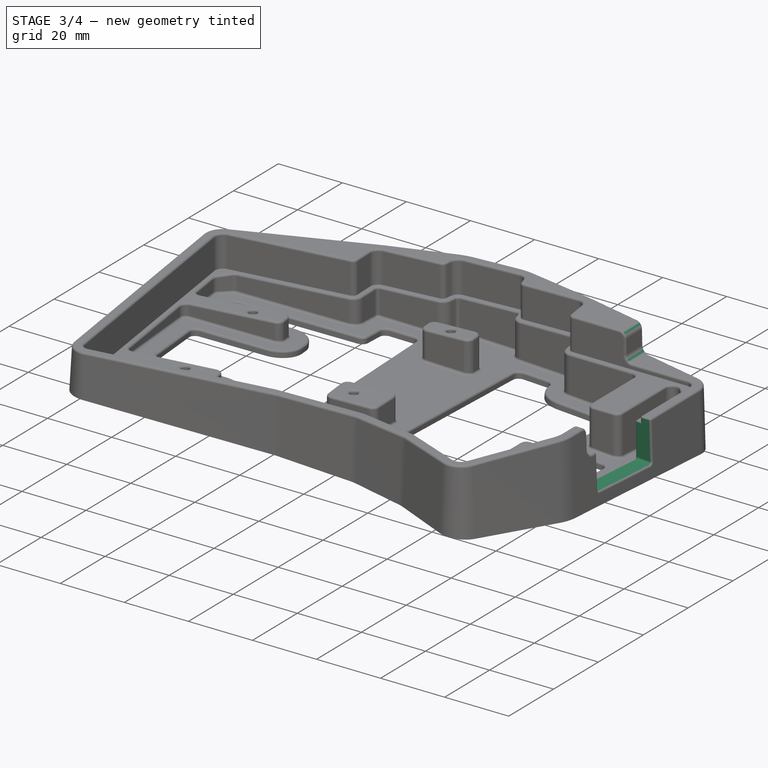
[diagram: stage 3 of 4 — iso view after this stage's code; geometry added in this stage tinted green]
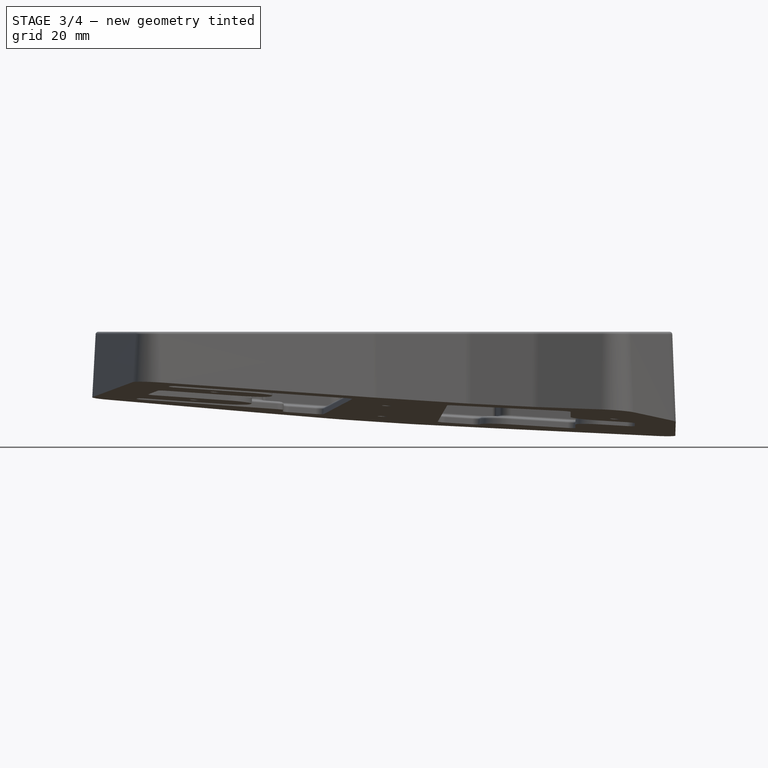
[diagram: stage 3 of 4 — front view after this stage's code; geometry added in this stage tinted green]
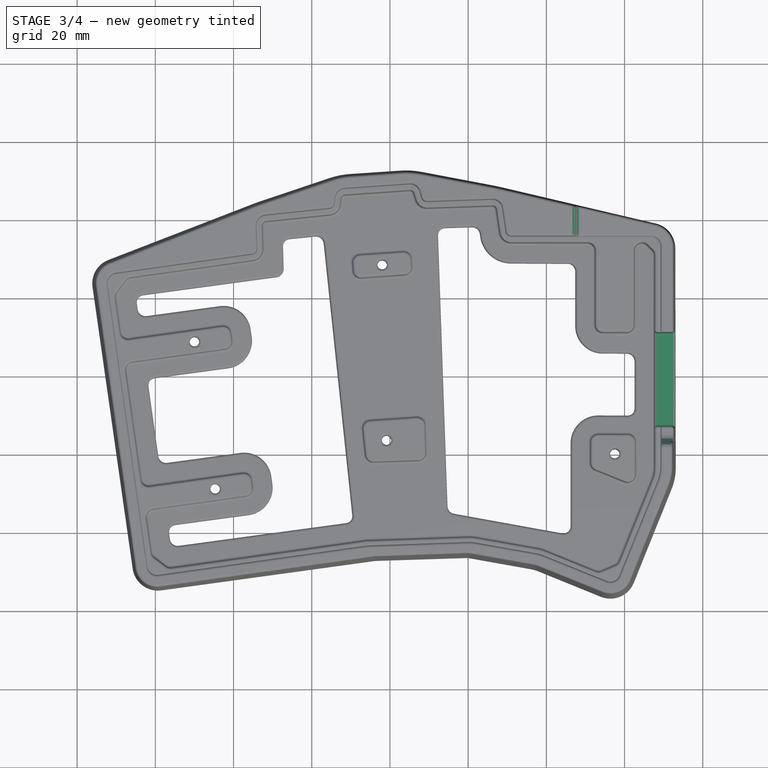
[diagram: stage 3 of 4 — top view after this stage's code; geometry added in this stage tinted green]
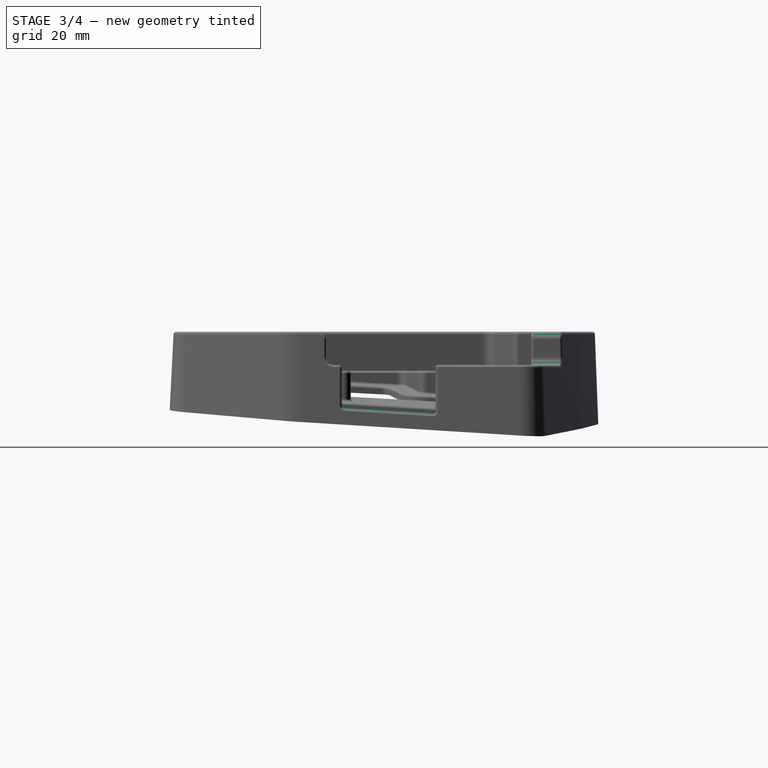
[diagram: stage 3 of 4 — right view after this stage's code; geometry added in this stage tinted green]
FEATURE [Sketcher::SketchObject] Sketch007
  ExternalGeometry = -> [Sketch003]
  FullyConstrained = true
  MapMode = 5
  Placement = pos=(0,0,20) rot=(0,0,1;0rad)
  Support = -> [AdditiveLoft]
  sketch-geometry (4):
    g0: LineSegment StartX=62.4896 StartY=11.1163 StartZ=0 EndX=92.4896 EndY=11.1163 EndZ=0
    g1: LineSegment StartX=92.4896 StartY=11.1163 StartZ=0 EndX=92.4896 EndY=-12.8837 EndZ=0
    g2: LineSegment StartX=92.4896 StartY=-12.8837 StartZ=0 EndX=62.4896 EndY=-12.8837 EndZ=0
    g3: LineSegment StartX=62.4896 StartY=-12.8837 StartZ=0 EndX=62.4896 EndY=11.1163 EndZ=0
  constraints (12):
    c: Coincident(g0,g1)
    c: Coincident(g1,g2)
    c: Coincident(g2,g3)
    c: Coincident(g3,g0)
    c: Horizontal(g0)
    c: Horizontal(g2)
    c: Vertical(g1)
    c: Vertical(g3)
    c: Horizontal(g-4,g0)
    c: Distance(g-4,g0) = 2
    c: Distance(g0) = 30
    c: Distance(g2,g-3) = 2
FEATURE [PartDesign::Pocket] Pocket004
  BaseFeature = -> Pocket003
  Direction = (0,0,-1)
  Length = 0
  Length2 = 5
  Offset = -2
  Profile = -> Sketch007
  ReferenceAxis = -> Sketch007 [N_Axis]
  Type = 3
  UpToFace = -> Pocket003 [Face180]
FEATURE [PartDesign::Fillet] Fillet001
  Base = -> Pocket004 [Edge15,Edge88,Edge156,Edge47]
  BaseFeature = -> Pocket004
  Radius = 2
  SupportTransform = false
  UseAllEdges = false
FEATURE [PartDesign::Fillet] Fillet
  Base = -> Fillet001 [Edge41,Edge49,Edge321,Face68,Edge310,Face70,Face189,Face69,Edge316,Edge317,Face188,Face190,Face187]
  BaseFeature = -> Fillet001
  Radius = 0.65
  SupportTransform = false
  UseAllEdges = false
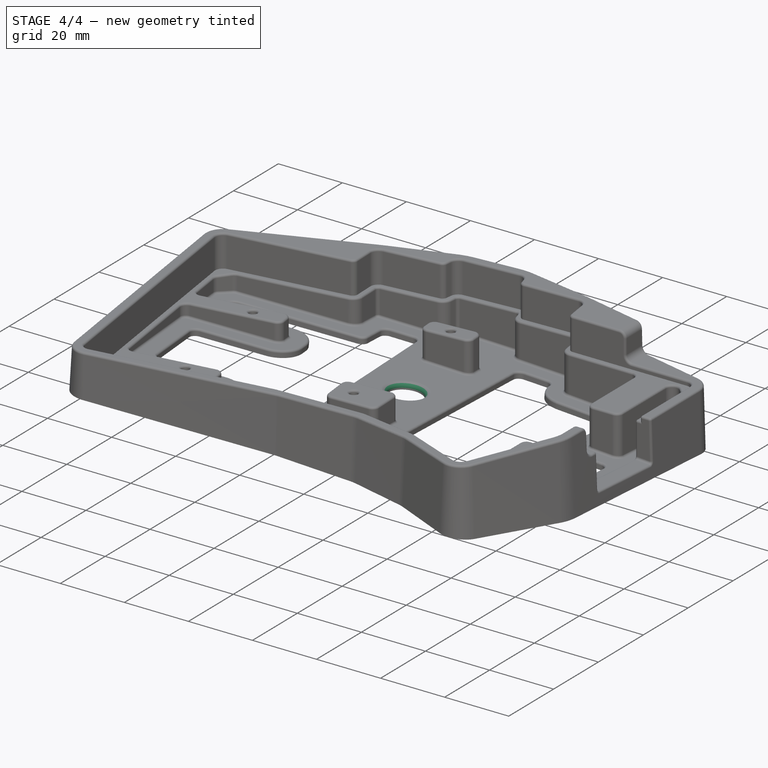
[diagram: stage 4 of 4 — iso view after this stage's code; geometry added in this stage tinted green]
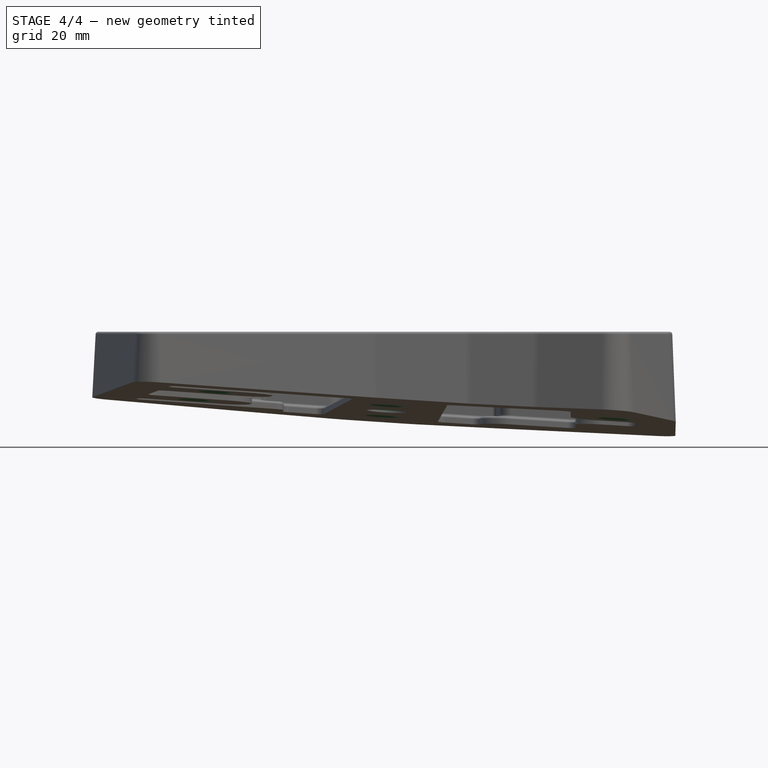
[diagram: stage 4 of 4 — front view after this stage's code; geometry added in this stage tinted green]
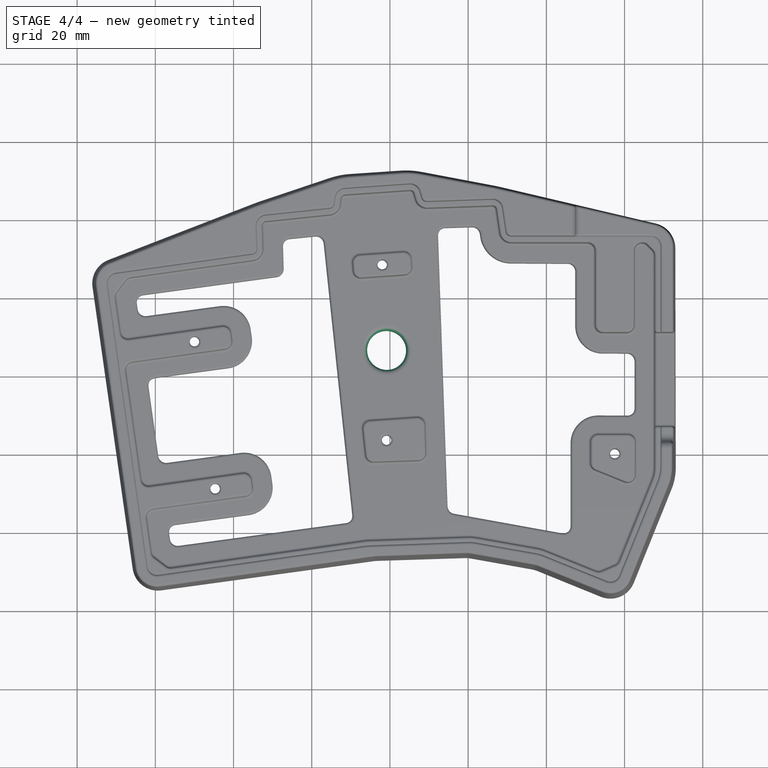
[diagram: stage 4 of 4 — top view after this stage's code; geometry added in this stage tinted green]
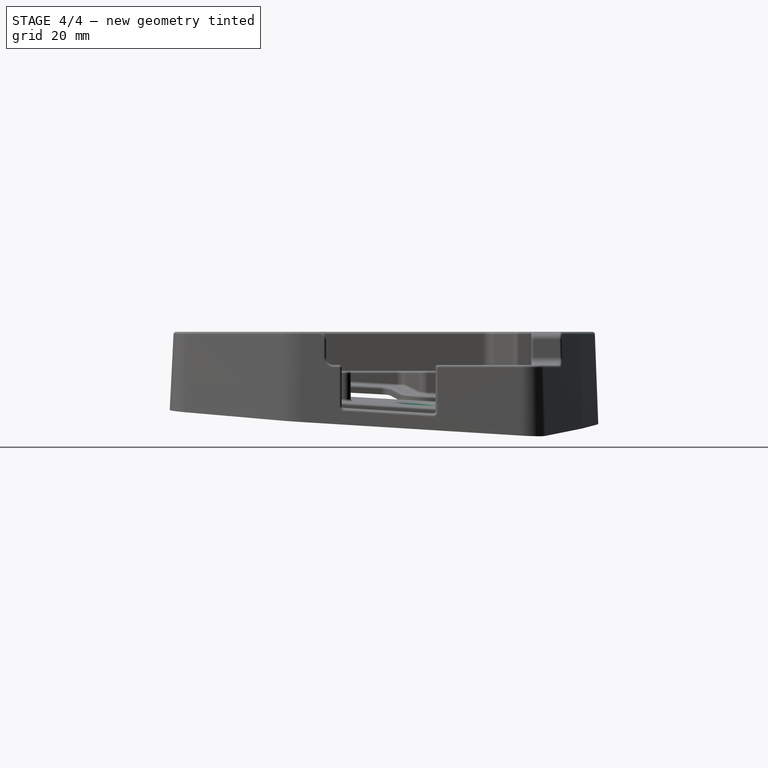
[diagram: stage 4 of 4 — right view after this stage's code; geometry added in this stage tinted green]
FEATURE [PartDesign::Chamfer] Chamfer
  Angle = 45
  Base = -> Fillet [Edge400,Edge451,Edge401,Edge402,Edge450]
  BaseFeature = -> Fillet
  ChamferType = 0
  FlipDirection = false
  Size = 3
  Size2 = 1
  SupportTransform = false
  UseAllEdges = false
FEATURE [Sketcher::SketchObject] Sketch008
  ExternalGeometry = -> [Pocket001]
  FullyConstrained = true
  MapMode = 5
  Placement = pos=(0.122788,0.122788,1.98481) rot=(-0.707612,0.706264,-0.021825;0.087287rad)
  Support = -> [Pocket001]
  sketch-geometry (1):
    g0: Circle CenterX=-0.877889 CenterY=6.61993 CenterZ=0 NormalX=0 NormalY=0 NormalZ=1 AngleXU=0 Radius=5
  constraints (2):
    c: Symmetric(g-3,g-4,g0)
    c: Diameter(g0) = 10
FEATURE [PartDesign::Pocket] Pocket005
  BaseFeature = -> Chamfer
  Direction = (-0.0616284,-0.0616284,-0.996195)
  Length = 5
  Length2 = 5
  Profile = -> Sketch008
  ReferenceAxis = -> Sketch008 [N_Axis]
  Type = 1
FEATURE [PartDesign::Fillet] Fillet002
  Base = -> Pocket005 [Edge240]
  BaseFeature = -> Pocket005
  Radius = 1.5
  SupportTransform = false
  UseAllEdges = false
FEATURE [PartDesign::Body] Body
  Group = -> [Sketch,Sketch001,Sketch002,Sketch003,Sketch004,Sketch005,AdditiveLoft,Pocket,Pocket001,Hole,Pocket002,Sketch006,Pocket003,Sketch007,Pocket004,Fillet001,Fillet,Chamfer,Sketch008,Pocket005,Fillet002]
  Origin = -> Origin
  Placement = pos=(0,0,0) rot=(0.707107,-0.707107,0;0.087266rad)
  Tip = -> Fillet002
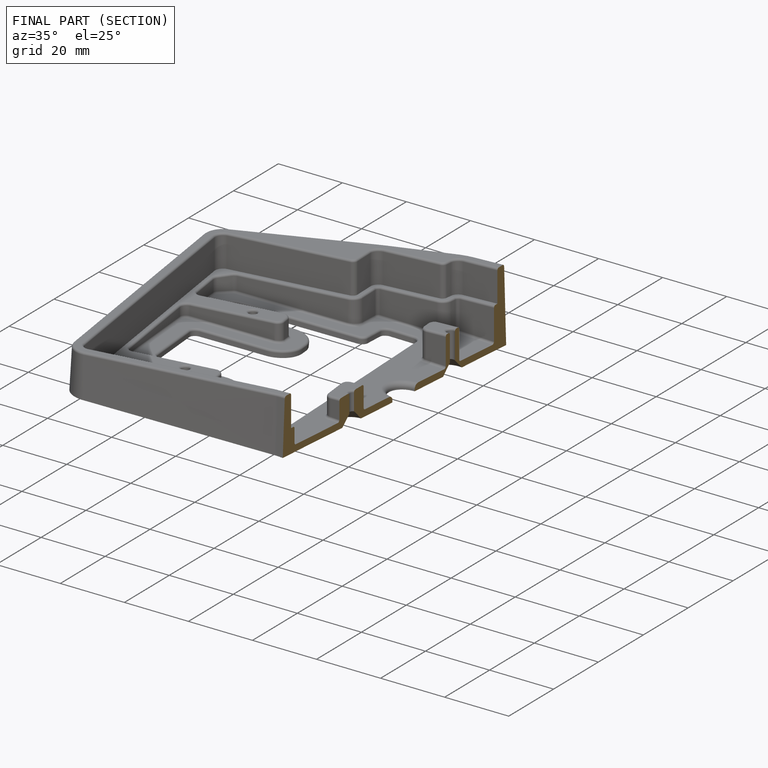
[diagram: finished part — half-section view (interior)]
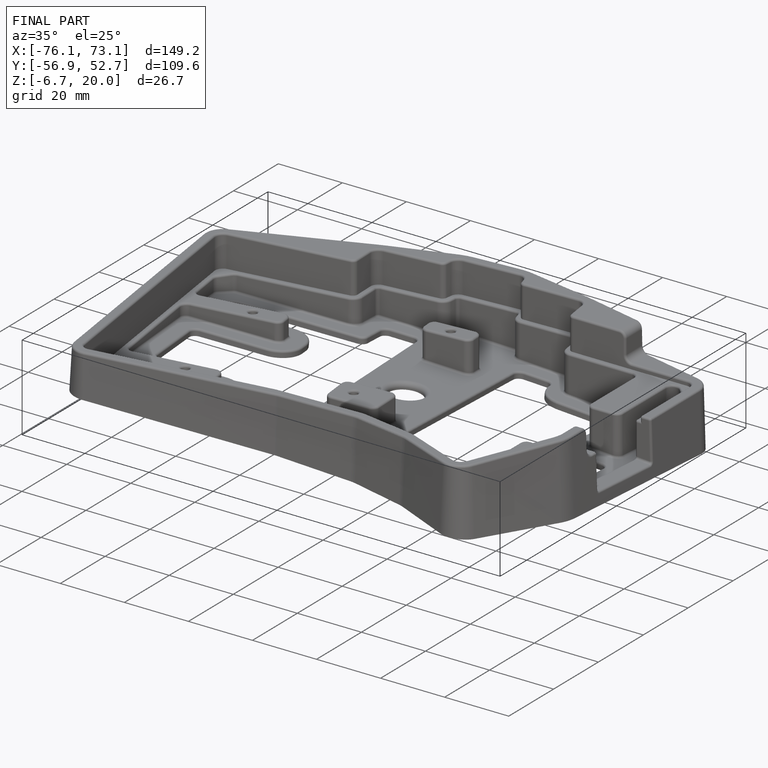
[diagram: finished part — iso view with bounding-box wireframe]
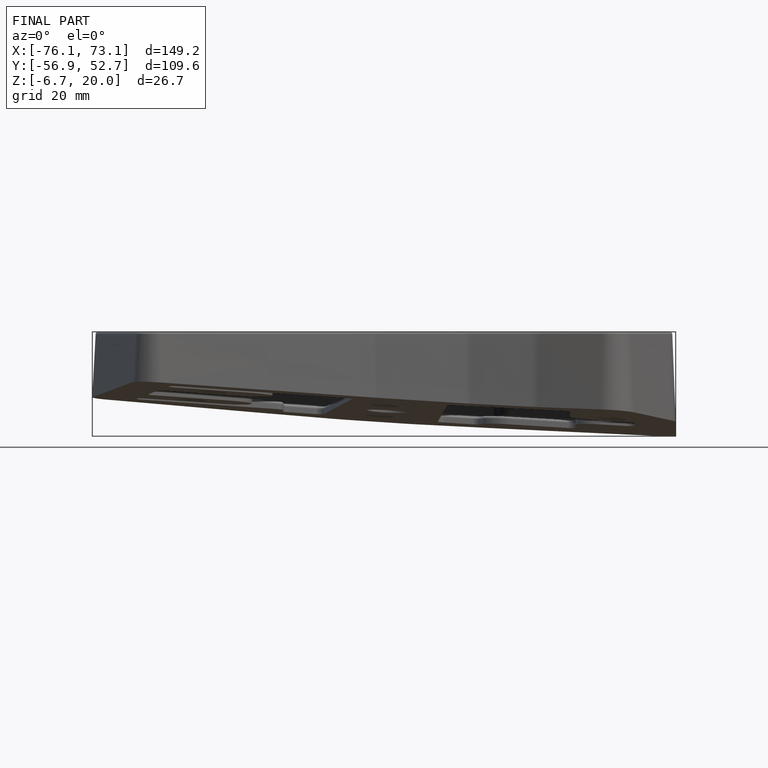
[diagram: finished part — front view with bounding-box wireframe]
